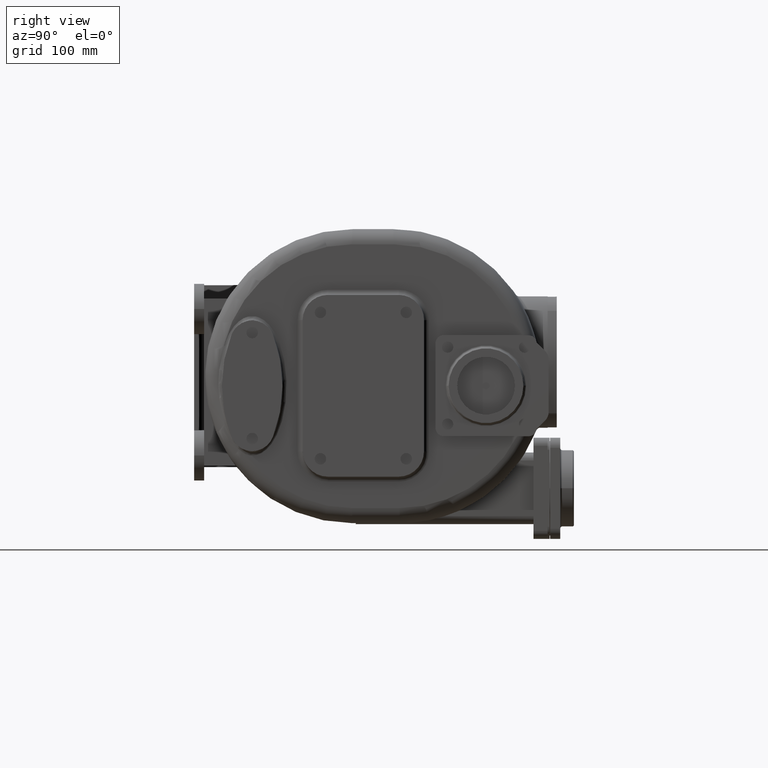
[diagram: clean part render]
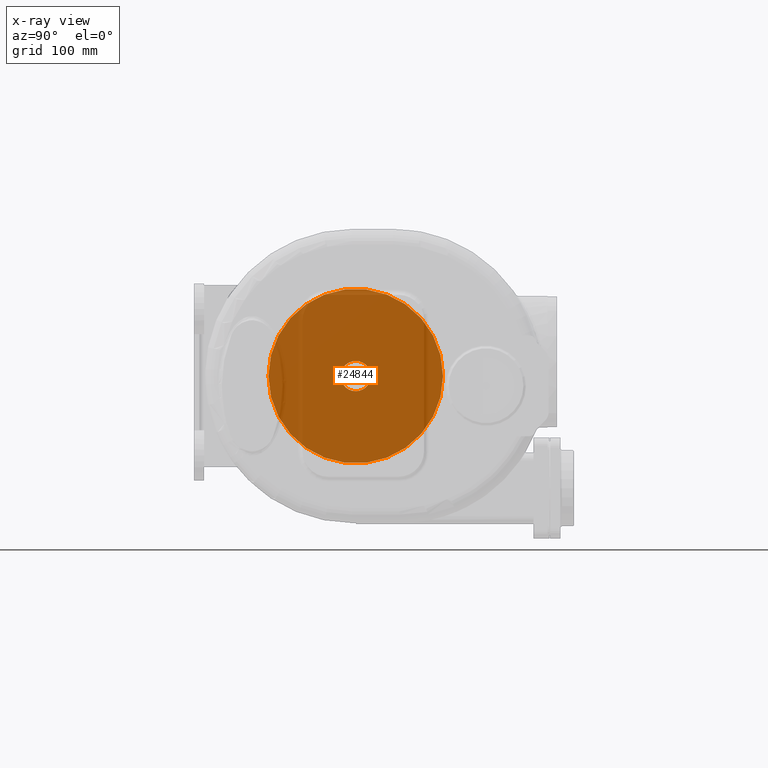
[diagram: x-ray — body ghosted, one internal face saturated and labeled with its STEP entity id]
A machine part, right view, then the same camera in x-ray: the body is ghosted and one INTERNAL B-rep face — a face not visible from any outside direction — is saturated and labeled: STEP entity #24844.
In plain terms, the highlighted planar face has unit normal (1, 0, 0).
Its self-contained STEP definition (entity closure, byte-faithful):
#24589=CARTESIAN_POINT('',(-5.5E1,1.5E2,0.E0));
#24590=DIRECTION('',(-1.E0,0.E0,0.E0));
#24591=DIRECTION('',(0.E0,-1.E0,0.E0));
#24592=AXIS2_PLACEMENT_3D('',#24589,#24590,#24591);
#24594=CARTESIAN_POINT('',(-5.5E1,1.5E2,0.E0));
#24595=DIRECTION('',(-1.E0,0.E0,0.E0));
#24596=DIRECTION('',(0.E0,1.E0,0.E0));
#24597=AXIS2_PLACEMENT_3D('',#24594,#24595,#24596);
#24599=CARTESIAN_POINT('',(-5.5E1,1.5E2,0.E0));
#24600=DIRECTION('',(1.E0,0.E0,0.E0));
#24601=DIRECTION('',(0.E0,0.E0,-1.E0));
#24602=AXIS2_PLACEMENT_3D('',#24599,#24600,#24601);
#24604=DIRECTION('',(0.E0,1.E0,0.E0));
#24605=VECTOR('',#24604,3.671400751121E0);
#24606=CARTESIAN_POINT('',(-5.5E1,1.61E2,-3.122498999199E0));
#24607=LINE('',#24606,#24605);
#24608=DIRECTION('',(0.E0,0.E0,-1.E0));
#24609=VECTOR('',#24608,6.244997998398E0);
#24610=CARTESIAN_POINT('',(-5.5E1,1.61E2,3.122498999199E0));
#24611=LINE('',#24610,#24609);
#24612=DIRECTION('',(0.E0,1.E0,0.E0));
#24613=VECTOR('',#24612,3.671400751121E0);
#24614=CARTESIAN_POINT('',(-5.5E1,1.61E2,3.122498999199E0));
#24615=LINE('',#24614,#24613);
#24616=CARTESIAN_POINT('',(-5.5E1,1.5E2,0.E0));
#24617=DIRECTION('',(1.E0,0.E0,0.E0));
#24618=DIRECTION('',(0.E0,9.780933834081E-1,2.081665999466E-1));
#24619=AXIS2_PLACEMENT_3D('',#24616,#24617,#24618);
#24621=CARTESIAN_POINT('',(-5.5E1,1.5E2,0.E0));
#24622=DIRECTION('',(1.E0,0.E0,0.E0));
#24623=DIRECTION('',(0.E0,0.E0,1.E0));
#24624=AXIS2_PLACEMENT_3D('',#24621,#24622,#24623);
#24760=CARTESIAN_POINT('',(-5.5E1,6.359323270451E1,3.849566332321E-14));
#24761=CARTESIAN_POINT('',(-5.5E1,2.364067672955E2,-2.791384622390E-14));
#24762=VERTEX_POINT('',#24760);
#24763=VERTEX_POINT('',#24761);
#24780=CARTESIAN_POINT('',(-5.5E1,1.5E2,-1.5E1));
#24781=CARTESIAN_POINT('',(-5.5E1,1.646714007511E2,-3.122498999199E0));
#24782=VERTEX_POINT('',#24780);
#24783=VERTEX_POINT('',#24781);
#24784=CARTESIAN_POINT('',(-5.5E1,1.646714007511E2,3.122498999199E0));
#24785=CARTESIAN_POINT('',(-5.5E1,1.5E2,1.5E1));
#24786=VERTEX_POINT('',#24784);
#24787=VERTEX_POINT('',#24785);
#24788=CARTESIAN_POINT('',(-5.5E1,1.61E2,3.122498999199E0));
#24789=CARTESIAN_POINT('',(-5.5E1,1.61E2,-3.122498999199E0));
#24790=VERTEX_POINT('',#24788);
#24791=VERTEX_POINT('',#24789);
#24820=CARTESIAN_POINT('',(-5.5E1,1.5E2,0.E0));
#24821=DIRECTION('',(1.E0,0.E0,0.E0));
#24822=DIRECTION('',(0.E0,0.E0,1.E0));
#24823=AXIS2_PLACEMENT_3D('',#24820,#24821,#24822);
#24824=PLANE('',#24823);
#24826=ORIENTED_EDGE('',*,*,#24825,.T.);
#24828=ORIENTED_EDGE('',*,*,#24827,.T.);
#24829=EDGE_LOOP('',(#24826,#24828));
#24830=FACE_OUTER_BOUND('',#24829,.F.);
#24832=ORIENTED_EDGE('',*,*,#24831,.T.);
#24834=ORIENTED_EDGE('',*,*,#24833,.F.);
#24835=ORIENTED_EDGE('',*,*,#24805,.F.);
#24837=ORIENTED_EDGE('',*,*,#24836,.T.);
#24839=ORIENTED_EDGE('',*,*,#24838,.T.);
#24841=ORIENTED_EDGE('',*,*,#24840,.T.);
#24842=EDGE_LOOP('',(#24832,#24834,#24835,#24837,#24839,#24841));
#24843=FACE_BOUND('',#24842,.F.);
#24844=ADVANCED_FACE('',(#24830,#24843),#24824,.T.);
#24593=CIRCLE('',#24592,8.640676729549E1);
#24598=CIRCLE('',#24597,8.640676729549E1);
#24603=CIRCLE('',#24602,1.5E1);
#24620=CIRCLE('',#24619,1.5E1);
#24625=CIRCLE('',#24624,1.5E1);
#24805=EDGE_CURVE('',#24790,#24791,#24611,.T.);
#24825=EDGE_CURVE('',#24762,#24763,#24593,.T.);
#24827=EDGE_CURVE('',#24763,#24762,#24598,.T.);
#24831=EDGE_CURVE('',#24782,#24783,#24603,.T.);
#24833=EDGE_CURVE('',#24791,#24783,#24607,.T.);
#24836=EDGE_CURVE('',#24790,#24786,#24615,.T.);
#24838=EDGE_CURVE('',#24786,#24787,#24620,.T.);
#24840=EDGE_CURVE('',#24787,#24782,#24625,.T.);